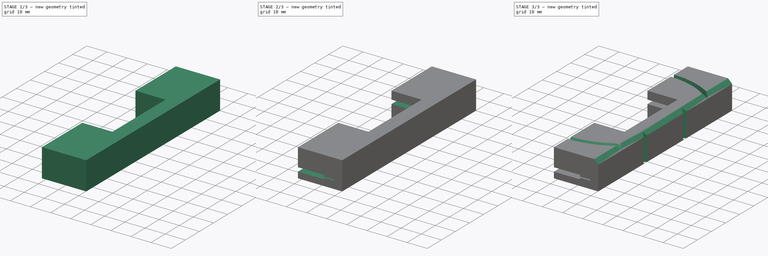
[diagram: build sequence overview — one tinted view per stage of 3, left to right]
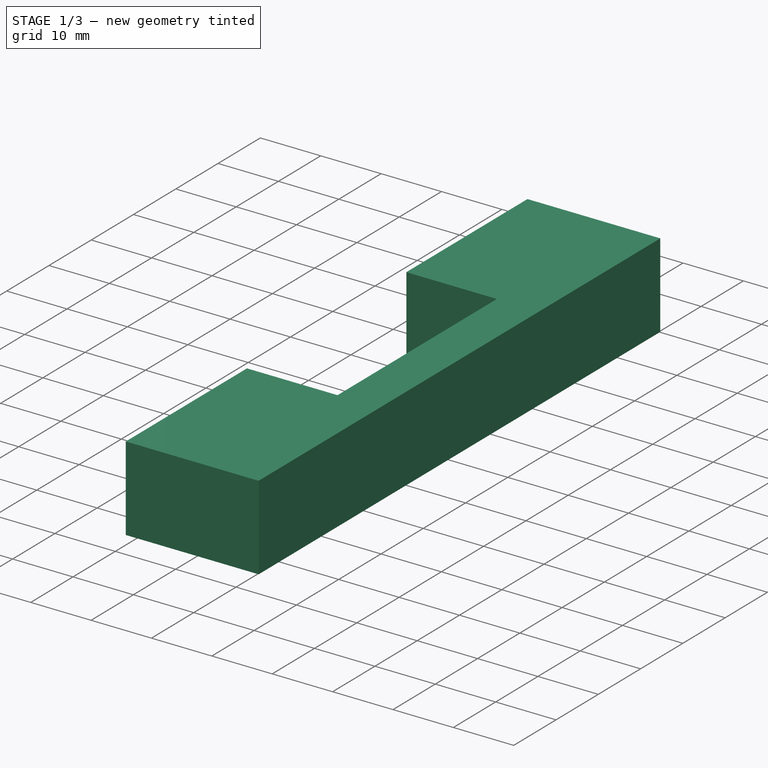
[diagram: stage 1 of 3 — iso view after this stage's code; geometry added in this stage tinted green]
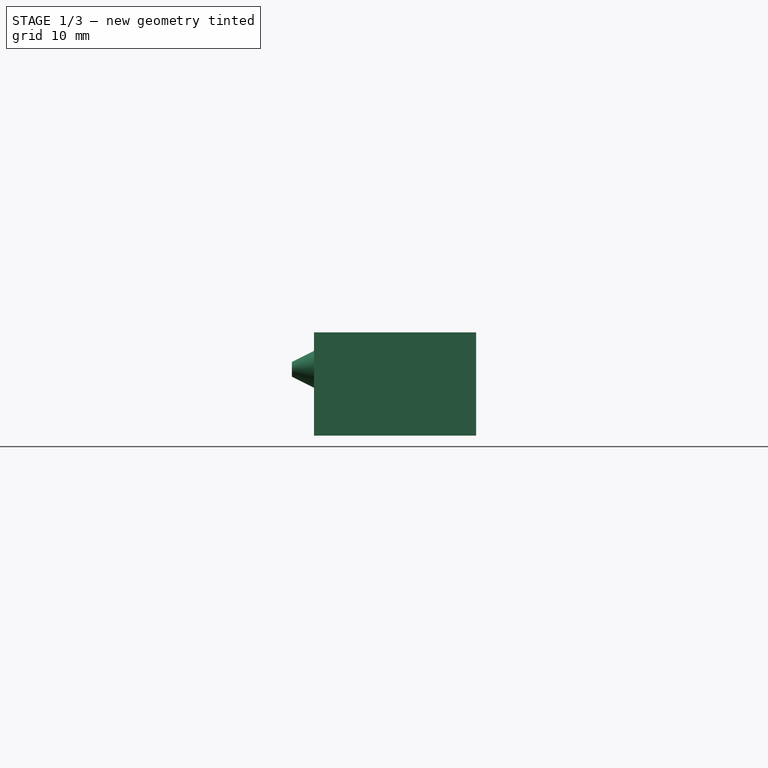
[diagram: stage 1 of 3 — front view after this stage's code; geometry added in this stage tinted green]
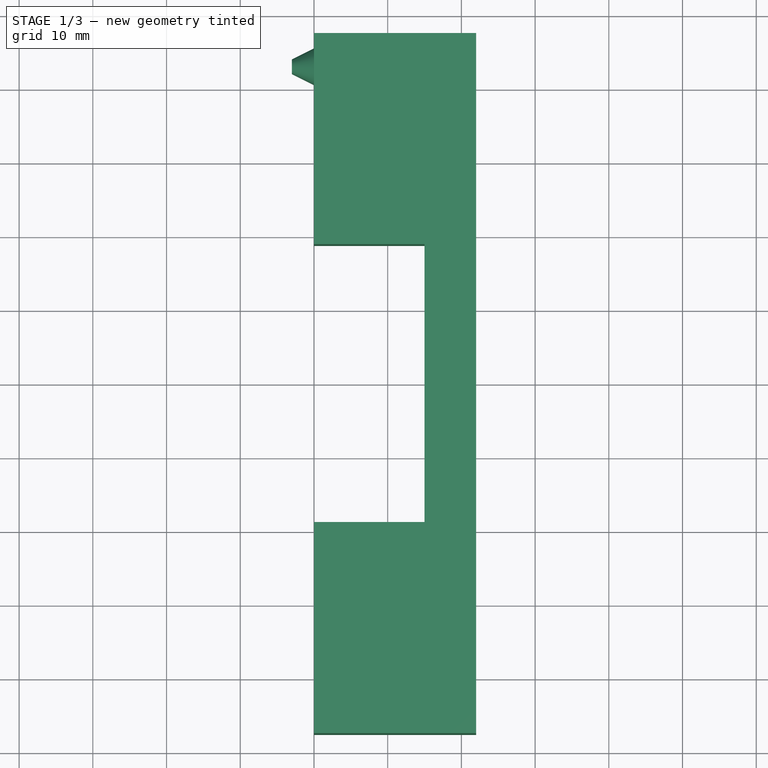
[diagram: stage 1 of 3 — top view after this stage's code; geometry added in this stage tinted green]
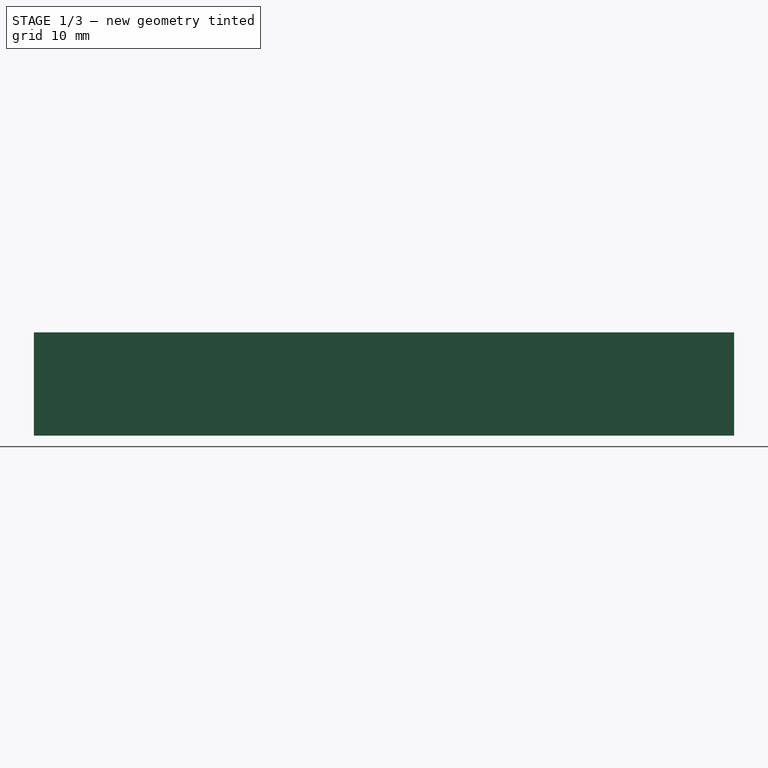
[diagram: stage 1 of 3 — right view after this stage's code; geometry added in this stage tinted green]
FCSTD DOCUMENT  (FreeCAD 1.0R39109 (Git))
Label: film_scanning
License: All rights reserved
LicenseURL: https://en.wikipedia.org/wiki/All_rights_reserved
objects: Sketcher::SketchObject×8, PartDesign::Pocket×4, PartDesign::Body×2, Part::Offset2D×2, PartDesign::Groove×2, PartDesign::ShapeBinder×2, Spreadsheet::Sheet×1, PartDesign::Pad×1, PartDesign::Revolution×1, PartDesign::Plane×1, App::Part×1
note: 47 computed .brp shape members not serialized (recipe doc carries the construction recipe); baked Part::Feature solids carry a one-line shape summary decoded from their .brp

FEATURE [Spreadsheet::Sheet] Spreadsheet  label="params"
  cells = A1='Film Plane Z; B1(film_plane_z)=0; A2='Film Clearance Perforation Width; B2(film_clearance_perforation_w)=0.5; A3='Film Clearance Inner Width; B3(film_clearance_inner_w)=2; A4='Film Clearance Perforation Length; B4(film_clearance_perforation_l)=36; A5='Film Clearance Inner Length; B5(film_clearance_inner_l)=26; A6='Film Window Width; B6(film_window_w)==film_clearance_perforation_l - 6; A7='Film Window Length; B7(film_window_l)=37.7; A8='Film S Curve Length; B8(film_s_curve_l)=20; A9='Alignment Pins Diameter; B9(alignment_pins_d)=5; A10='Alignment Pins Z; B10(alignment_pins_z)=0; A11='Alignment Pins Y; B11(alignment_pins_y)=43; A12='Alignment Pins Tolerance; B12(alignment_pins_t)=0.3; A13='Holder Width; B13(holder_w)==film_window_w + groove_d * 2 + 10; A14='Holder Working Distance Offset; B14(holder_wd_offset)=9; A15='Holder Thickness; B15(holder_t)=14; A16='Mount External Radius; B16(mount_external_r)=36.95; A17='Groove Depth; B17(groove_d)=2
FEATURE [Sketcher::SketchObject] Sketch001
  ArcFitTolerance = 0
  AttachmentSupport = -> [XY_Plane]
  FullyConstrained = true
  MakeInternals = false
  MapMode = 5
  expr: Constraints[12] = Spreadsheet.film_window_l
  expr: Constraints[13] = Spreadsheet.film_window_w / 2
  expr: Constraints[23] = <<params>>.holder_w / 2
  sketch-geometry (9):
    g0: LineSegment StartX=0 StartY=18.85 StartZ=0 EndX=15 EndY=18.85 EndZ=0
    g1: LineSegment StartX=15 StartY=18.85 StartZ=0 EndX=15 EndY=-18.85 EndZ=0
    g2: LineSegment StartX=15 StartY=-18.85 StartZ=0 EndX=0 EndY=-18.85 EndZ=0
    g3: LineSegment [constr] StartX=0 StartY=-18.85 StartZ=0 EndX=0 EndY=18.85 EndZ=0
    g4: LineSegment StartX=0 StartY=47.5 StartZ=0 EndX=22 EndY=47.5 EndZ=0
    g5: LineSegment StartX=22 StartY=47.5 StartZ=0 EndX=22 EndY=-47.5 EndZ=0
    g6: LineSegment StartX=22 StartY=-47.5 StartZ=0 EndX=0 EndY=-47.5 EndZ=0
    g7: LineSegment StartX=0 StartY=47.5 StartZ=0 EndX=0 EndY=18.85 EndZ=0
    g8: LineSegment StartX=0 StartY=-18.85 StartZ=0 EndX=0 EndY=-47.5 EndZ=0
  constraints (24):
    c: Coincident(g0,g1)
    c: Coincident(g1,g2)
    c: Coincident(g2,g3)
    c: Coincident(g3,g0)
    c: Horizontal(g0)
    c: Horizontal(g2)
    c: Vertical(g1)
    c: Vertical(g3)
    c: Coincident(g4,g5)
    c: Coincident(g5,g6)
    c: Horizontal(g4)
    c: Horizontal(g6)
    c: Distance(g1) = 37.7
    c: Distance(g2) = 15
    c: Symmetric(g0,g2,g-1)
    c: Distance(g5) = 95
    c: Coincident(g7,g4)
    c: Coincident(g7,g0)
    c: Vertical(g7)
    c: Coincident(g8,g2)
    c: Coincident(g8,g6)
    c: Vertical(g8)
    c: Symmetric(g4,g5,g-1)
    c: Distance(g-1,g5) = 22
FEATURE [PartDesign::Pad] Pad
  Direction = (0,0,1)
  Length = 5
  Length2 = 9
  Profile = -> Sketch001
  ReferenceAxis = -> Sketch001 [N_Axis]
  Suppressed = false
  Type = 4
  expr: Length = <<params>>.holder_t - <<params>>.holder_wd_offset
  expr: Length2 = <<params>>.holder_wd_offset
FEATURE [Sketcher::SketchObject] Sketch
  ArcFitTolerance = 0
  AttachmentSupport = -> [YZ_Plane001]
  FullyConstrained = true
  MakeInternals = false
  MapMode = 5
  Placement = pos=(0,0,0) rot=(0.57735,0.57735,0.57735;2.0944rad)
  expr: Constraints[34] = <<params>>.film_plane_z
  expr: Constraints[35] = <<params>>.film_window_l + 10
  expr: Constraints[46] = <<params>>.film_s_curve_l
  sketch-geometry (21):
    g0: LineSegment StartX=-23.85 StartY=0 StartZ=0 EndX=23.85 EndY=0 EndZ=0
    g1: LineSegment StartX=-73.85 StartY=-5 StartZ=0 EndX=-43.85 EndY=-5 EndZ=0
    g2: LineSegment StartX=43.85 StartY=-5 StartZ=0 EndX=73.85 EndY=-5 EndZ=0
    g3-g6: Circle [constr] x4 (B-spline internal-alignment scaffolding for g7; pole/knot coordinates omitted)
    g7: BSplineCurve PolesCount=4 KnotsCount=2 Degree=3 IsPeriodic=0
    g8: GeomPoint [constr] X=23.85 Y=0 Z=0
    g9: GeomPoint [constr] X=43.85 Y=-5 Z=0
    g10-g13: Circle [constr] x4 (B-spline internal-alignment scaffolding for g14; pole/knot coordinates omitted)
    g14: BSplineCurve PolesCount=4 KnotsCount=2 Degree=3 IsPeriodic=0
    g15: GeomPoint [constr] X=-23.85 Y=0 Z=0
    g16: GeomPoint [constr] X=-43.85 Y=-5 Z=0
    g17: LineSegment [constr] StartX=23.85 StartY=0 StartZ=0 EndX=33.85 EndY=0 EndZ=0
    g18: LineSegment [constr] StartX=33.85 StartY=-5 StartZ=0 EndX=43.85 EndY=-5 EndZ=0
    g19: LineSegment [constr] StartX=-43.85 StartY=-5 StartZ=0 EndX=-33.85 EndY=-5 EndZ=0
    g20: LineSegment [constr] StartX=-33.85 StartY=0 StartZ=0 EndX=-23.85 EndY=0 EndZ=0
  constraints (44):
    c: Horizontal(g1)
    c: Horizontal(g2)
    c: Symmetric(g1,g2,g-2)
    c: Symmetric(g0,g0,g-2)
    c: Weight(g3) = 1
    c: Coincident(g7,g0)
    c: Equal(g3,g4)
    c: Equal(g3,g5)
    c: Equal(g3,g6)
    c: Coincident(g7,g2)
    c: InternalAlignment(g3-g6 -> g7) x4
    c: InternalAlignment(g8,g7)
    c: InternalAlignment(g9,g7)
    c: PointOnObject(g5,g2)
    c: PointOnObject(g4,g0)
    c: Weight(g10) = 1
    c: Coincident(g14,g0)
    c: Equal(g10,g11)
    c: Equal(g10,g12)
    c: Equal(g10,g13)
    c: Coincident(g14,g1)
    c: InternalAlignment(g10-g13 -> g14) x4
    c: InternalAlignment(g15,g14)
    c: InternalAlignment(g16,g14)
    c: PointOnObject(g12,g1)
    c: PointOnObject(g11,g0)
    c: Vertical(g11,g12)
    c: Vertical(g4,g5)
    c: Distance(g-1,g0) = 0
    c: Distance(g0) = 47.7
    c: Coincident(g17,g0)
    c: Coincident(g17,g4)
    c: Coincident(g18,g5)
    c: Coincident(g18,g2)
    c: Equal(g17,g18)
    c: Coincident(g19,g1)
    c: Coincident(g19,g12)
    c: Coincident(g20,g11)
    c: Coincident(g20,g0)
    c: Equal(g20,g19)
    c: DistanceX(g0,g2) = 20
    c: DistanceY(g2,g0) = 5
    c: Distance(g2) = 30
    c: Equal(g1,g2)
FEATURE [PartDesign::Body] Body  label="Film Guide"
  AllowCompound = false
  Group = -> [Sketch]
  Origin = -> Origin001
FEATURE [Part::Offset2D] Offset2D  label="Film Clearance Inner"
  Fill = false
  Intersection = false
  Join = 0
  Mode = 1
  SelfIntersection = false
  Source = -> Sketch
  Value = 1
  expr: Value = Spreadsheet.film_clearance_inner_w / 2
FEATURE [Part::Offset2D] Offset2D001  label="Film Clearance Perforation"
  Fill = false
  Intersection = false
  Join = 0
  Mode = 1
  SelfIntersection = false
  Source = -> Sketch
  Value = 0.25
  expr: Value = Spreadsheet.film_clearance_perforation_w / 2
FEATURE [Sketcher::SketchObject] Sketch003
  ArcFitTolerance = 0
  AttachmentSupport = -> [XY_Plane]
  FullyConstrained = true
  MakeInternals = false
  MapMode = 5
  expr: .AttachmentOffset.Base.z = <<params>>.alignment_pins_z
  expr: Constraints[14] = <<params>>.alignment_pins_d
  expr: Constraints[16] = <<params>>.alignment_pins_y
  expr: Constraints[8] = <<params>>.alignment_pins_d / 2
  sketch-geometry (6):
    g0: LineSegment StartX=-3 StartY=44 StartZ=0 EndX=0 EndY=45.5 EndZ=0
    g1: LineSegment StartX=0 StartY=45.5 StartZ=0 EndX=0 EndY=43 EndZ=0
    g2: LineSegment StartX=0 StartY=43 StartZ=0 EndX=-3 EndY=43 EndZ=0
    g3: LineSegment StartX=-3 StartY=43 StartZ=0 EndX=-3 EndY=44 EndZ=0
    g4: LineSegment [constr] StartX=-3 StartY=43 StartZ=0 EndX=-5 EndY=43 EndZ=0
    g5: LineSegment [constr] StartX=-5 StartY=43 StartZ=0 EndX=-3 EndY=44 EndZ=0
  constraints (17):
    c: Coincident(g0,g1)
    c: Coincident(g1,g2)
    c: Coincident(g2,g3)
    c: Coincident(g3,g0)
    c: Horizontal(g2)
    c: Vertical(g1)
    c: Vertical(g3)
    c: PointOnObject(g-1,g1)
    c: Distance(g1) = 2.5
    c: Coincident(g4,g2)
    c: Horizontal(g4)
    c: Coincident(g5,g4)
    c: Coincident(g5,g0)
    c: Parallel(g5,g0)
    c: Distance(g4,g1) = 5
    c: Distance(g4) = 2
    c: DistanceY(g-1,g1) = 43
FEATURE [PartDesign::Revolution] Revolution  label="Alignment Pin"
  Angle = 360
  Angle2 = 60
  Axis = (-1,0,0)
  Base = (0,43,0)
  BaseFeature = -> Pad
  Profile = -> Sketch003
  ReferenceAxis = -> Sketch003 [Edge3]
  Suppressed = false
  Type = 0
FEATURE [Sketcher::SketchObject] Sketch004
  ArcFitTolerance = 0
  AttachmentSupport = -> [XY_Plane]
  FullyConstrained = true
  MakeInternals = false
  MapMode = 5
  expr: .AttachmentOffset.Base.z = <<params>>.alignment_pins_z
  expr: Constraints[4] = (<<params>>.alignment_pins_d + <<params>>.alignment_pins_t) / 2
  expr: Constraints[6] = <<params>>.alignment_pins_d + <<params>>.alignment_pins_t
  expr: Constraints[8] = -<<params>>.alignment_pins_y
  sketch-geometry (3):
    g0: LineSegment StartX=5.3 StartY=-43 StartZ=0 EndX=0 EndY=-40.35 EndZ=0
    g1: LineSegment StartX=0 StartY=-40.35 StartZ=0 EndX=0 EndY=-43 EndZ=0
    g2: LineSegment StartX=0 StartY=-43 StartZ=0 EndX=5.3 EndY=-43 EndZ=0
  constraints (9):
    c: Coincident(g0,g1)
    c: Coincident(g1,g2)
    c: Horizontal(g2)
    c: Vertical(g1)
    c: Distance(g1) = 2.65
    c: Coincident(g2,g0)
    c: Distance(g2) = 5.3
    c: PointOnObject(g1,g-2)
    c: DistanceY(g-1,g1) = -43
FEATURE [PartDesign::Groove] Groove  label="Alignment Hole"
  Angle = 360
  Angle2 = 60
  Axis = (1,0,0)
  Base = (0,-43,0)
  BaseFeature = -> Revolution
  Profile = -> Sketch004
  ReferenceAxis = -> Sketch004 [Edge3]
  Suppressed = false
  Type = 0
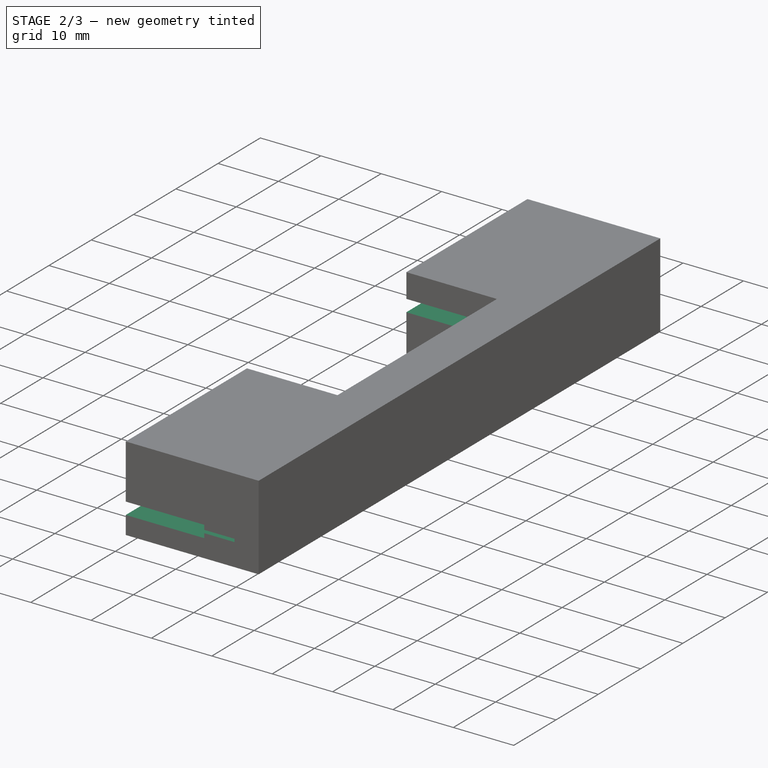
[diagram: stage 2 of 3 — iso view after this stage's code; geometry added in this stage tinted green]
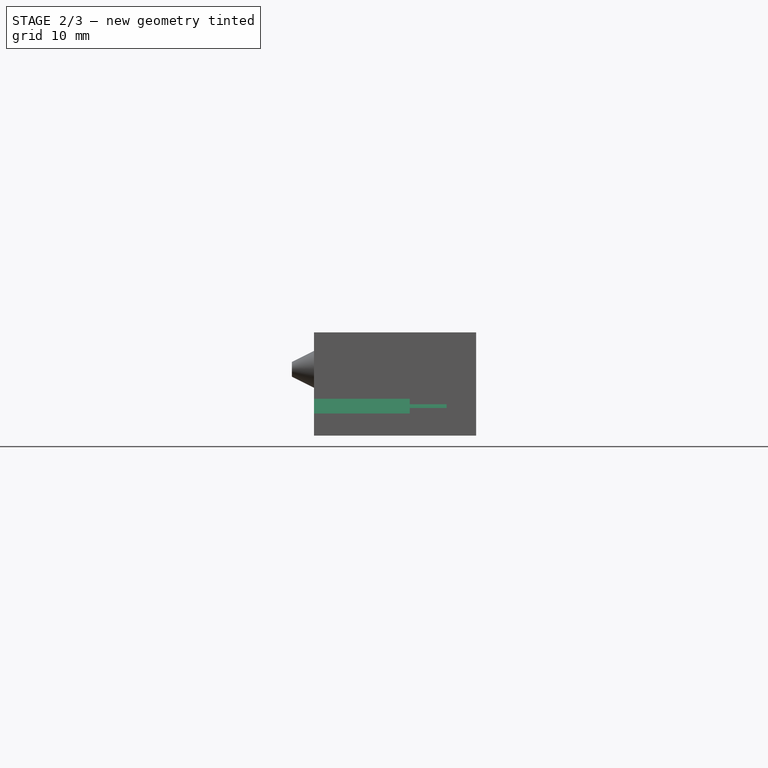
[diagram: stage 2 of 3 — front view after this stage's code; geometry added in this stage tinted green]
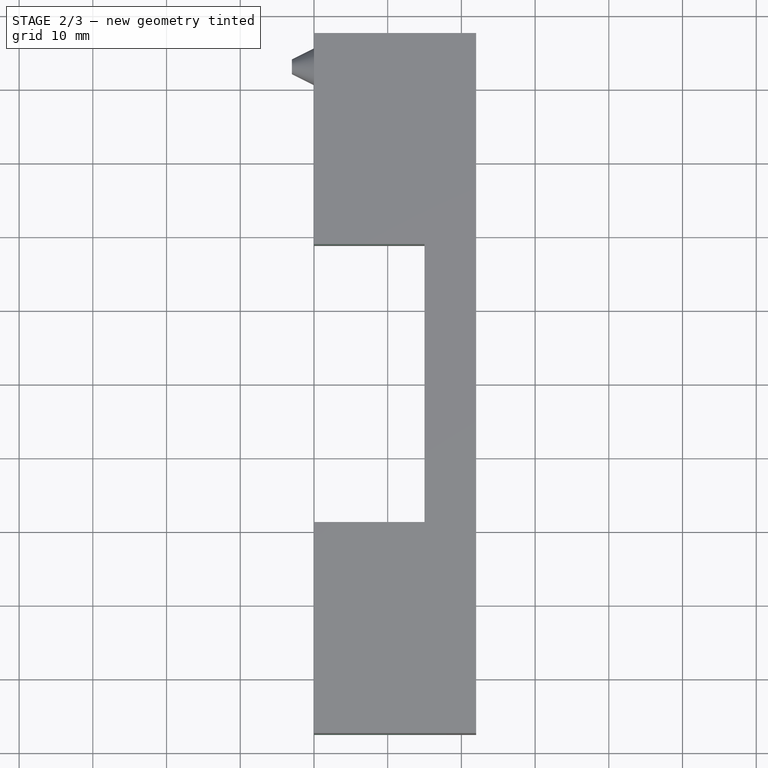
[diagram: stage 2 of 3 — top view after this stage's code; geometry added in this stage tinted green]
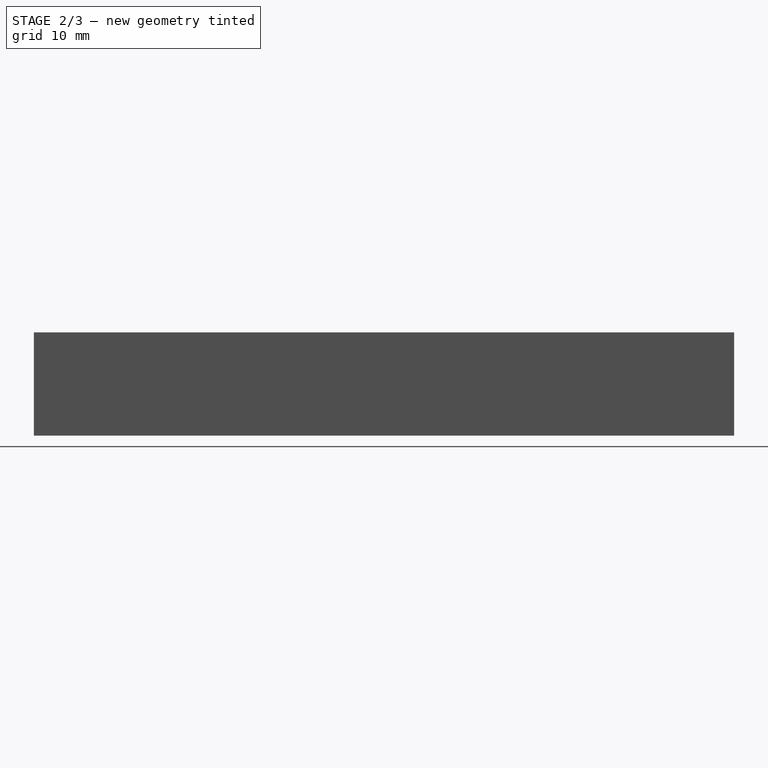
[diagram: stage 2 of 3 — right view after this stage's code; geometry added in this stage tinted green]
FEATURE [PartDesign::ShapeBinder] ShapeBinder  label="Film Clearance Perforation Binder Left"
  Support = -> [Offset2D001]
  TraceSupport = false
FEATURE [PartDesign::ShapeBinder] ShapeBinder001  label="Film Clearance Inner Binder Left"
  Support = -> [Offset2D]
  TraceSupport = false
FEATURE [PartDesign::Pocket] Pocket
  BaseFeature = -> Groove
  Direction = (-1,0,0)
  Length = 18
  Length2 = 5
  Profile = -> ShapeBinder
  Reversed = true
  Suppressed = false
  Type = 0
  expr: Length = <<params>>.film_clearance_perforation_l / 2
FEATURE [PartDesign::Pocket] Pocket001
  BaseFeature = -> Pocket
  Direction = (-1,0,0)
  Length = 13
  Length2 = 5
  Profile = -> ShapeBinder001
  Reversed = true
  Suppressed = false
  Type = 0
  expr: Length = <<params>>.film_clearance_inner_l / 2
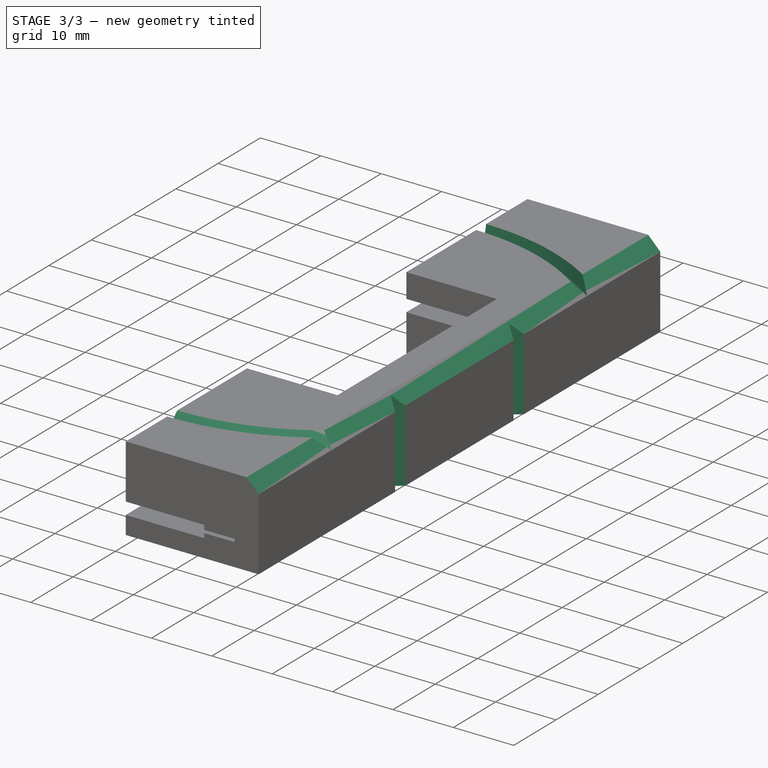
[diagram: stage 3 of 3 — iso view after this stage's code; geometry added in this stage tinted green]
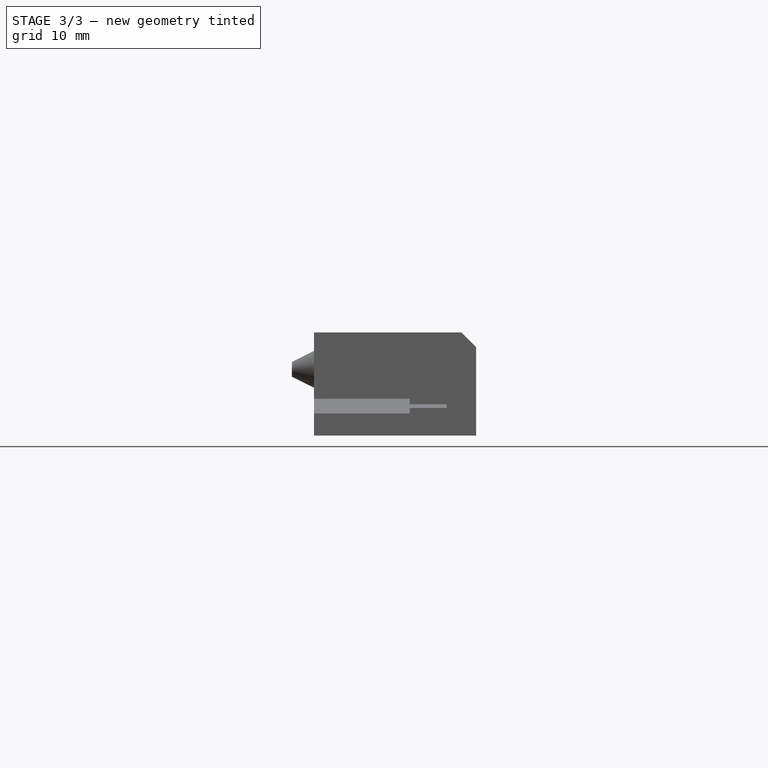
[diagram: stage 3 of 3 — front view after this stage's code; geometry added in this stage tinted green]
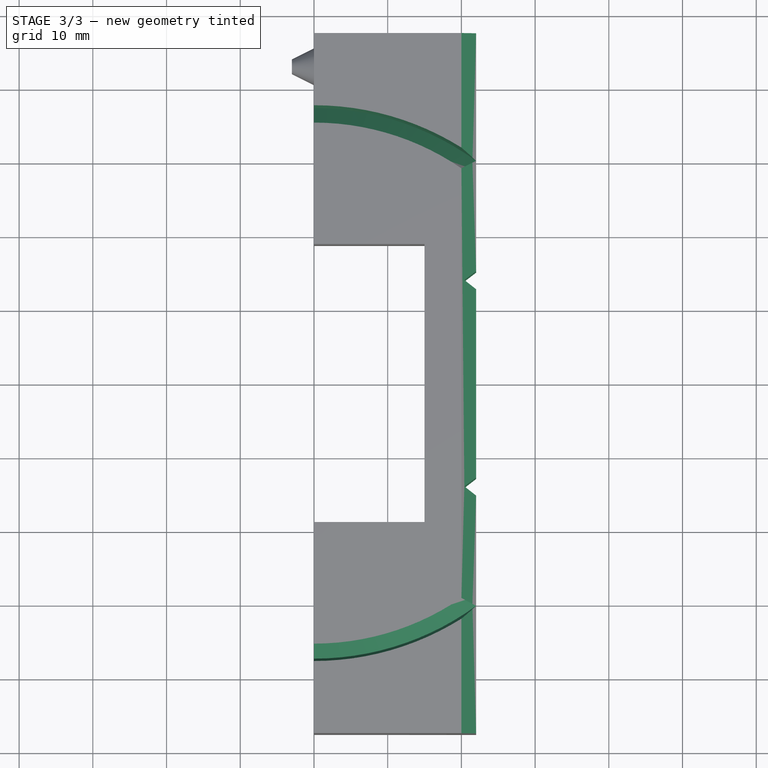
[diagram: stage 3 of 3 — top view after this stage's code; geometry added in this stage tinted green]
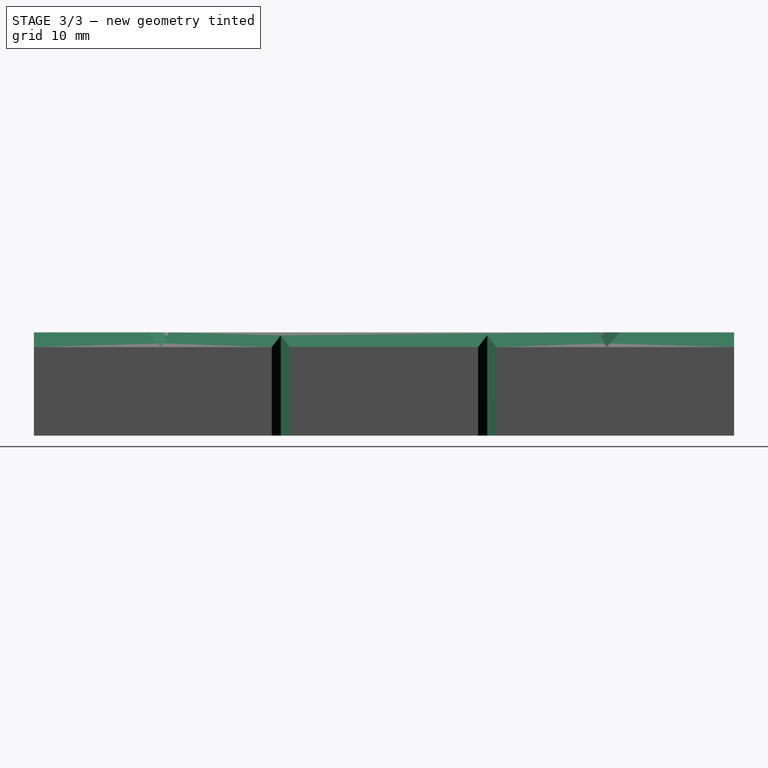
[diagram: stage 3 of 3 — right view after this stage's code; geometry added in this stage tinted green]
FEATURE [PartDesign::Plane] DatumPlane
  AttachmentOffset = pos=(0,0,22) rot=(0,0,1;0rad)
  AttachmentSupport = -> [YZ_Plane]
  Length = 108.784
  MapMode = 5
  Placement = pos=(22,0,0) rot=(0.57735,0.57735,0.57735;2.0944rad)
  ResizeMode = 0
  Width = 63.784
  expr: .AttachmentOffset.Base.z = <<params>>.holder_w / 2
FEATURE [Sketcher::SketchObject] Sketch007
  ArcFitTolerance = 0
  AttachmentSupport = -> [DatumPlane]
  FullyConstrained = true
  MakeInternals = false
  MapMode = 5
  Placement = pos=(22,0,0) rot=(0.57735,0.57735,0.57735;2.0944rad)
  expr: Constraints[25] = <<params>>.film_window_l
  sketch-geometry (10):
    g0: LineSegment StartX=-18.65 StartY=20 StartZ=0 EndX=-18.85 EndY=20 EndZ=0
    g1: LineSegment StartX=-18.85 StartY=20 StartZ=0 EndX=-18.85 EndY=-20 EndZ=0
    g2: LineSegment StartX=-18.85 StartY=-20 StartZ=0 EndX=-18.65 EndY=-20 EndZ=0
    g3: LineSegment StartX=-18.65 StartY=-20 StartZ=0 EndX=-18.65 EndY=20 EndZ=0
    g4: LineSegment StartX=18.85 StartY=-20 StartZ=0 EndX=18.65 EndY=-20 EndZ=0
    g5: LineSegment StartX=18.65 StartY=-20 StartZ=0 EndX=18.65 EndY=20 EndZ=0
    g6: LineSegment StartX=18.65 StartY=20 StartZ=0 EndX=18.85 EndY=20 EndZ=0
    g7: LineSegment StartX=18.85 StartY=20 StartZ=0 EndX=18.85 EndY=-20 EndZ=0
    g8: LineSegment [constr] StartX=-18.85 StartY=20 StartZ=0 EndX=18.85 EndY=20 EndZ=0
    g9: LineSegment [constr] StartX=-18.85 StartY=-20 StartZ=0 EndX=18.85 EndY=-20 EndZ=0
  constraints (27):
    c: Coincident(g0,g1)
    c: Coincident(g1,g2)
    c: Coincident(g2,g3)
    c: Coincident(g3,g0)
    c: Horizontal(g0)
    c: Horizontal(g2)
    c: Vertical(g1)
    c: Vertical(g3)
    c: Coincident(g4,g5)
    c: Coincident(g5,g6)
    c: Coincident(g6,g7)
    c: Coincident(g7,g4)
    c: Horizontal(g4)
    c: Horizontal(g6)
    c: Vertical(g5)
    c: Vertical(g7)
    c: Symmetric(g0,g4,g-1)
    c: Distance(g6) = 0.2
    c: Equal(g6,g0)
    c: Coincident(g8,g0)
    c: Coincident(g8,g6)
    c: Horizontal(g8)
    c: Coincident(g9,g1)
    c: Coincident(g9,g4)
    c: Horizontal(g9)
    c: Distance(g9) = 37.7
    c: Distance(g7) = 40
FEATURE [Sketcher::SketchObject] Sketch008
  ArcFitTolerance = 0
  AttachmentSupport = -> [XZ_Plane]
  FullyConstrained = true
  MakeInternals = false
  MapMode = 5
  Placement = pos=(0,0,0) rot=(1,0,0;1.5708rad)
  expr: Constraints[5] = <<params>>.holder_t - <<params>>.holder_wd_offset
  expr: Constraints[7] = <<params>>.holder_w / 2
  expr: Constraints[8] = <<params>>.groove_d
  sketch-geometry (3):
    g0: LineSegment StartX=20 StartY=5 StartZ=0 EndX=22 EndY=3 EndZ=0
    g1: LineSegment StartX=22 StartY=3 StartZ=0 EndX=22 EndY=5 EndZ=0
    g2: LineSegment StartX=20 StartY=5 StartZ=0 EndX=22 EndY=5 EndZ=0
  constraints (9):
    c: Coincident(g1,g0)
    c: Vertical(g1)
    c: Coincident(g2,g0)
    c: Coincident(g2,g1)
    c: Horizontal(g2)
    c: DistanceY(g-1,g1) = 5
    c: Angle(g0,g2) = 0.785398
    c: DistanceX(g-2,g1) = 22
    c: Distance(g2) = 2
FEATURE [PartDesign::Pocket] Pocket005
  BaseFeature = -> Pocket001
  Direction = (0,1,-2e-16)
  Length = 5
  Length2 = 5
  Midplane = true
  Profile = -> Sketch008
  ReferenceAxis = -> Sketch008 [N_Axis]
  Suppressed = false
  Type = 1
FEATURE [Sketcher::SketchObject] Sketch009
  ArcFitTolerance = 0
  AttachmentSupport = -> [YZ_Plane]
  FullyConstrained = true
  MakeInternals = false
  MapMode = 5
  Placement = pos=(0,0,0) rot=(0.57735,0.57735,0.57735;2.0944rad)
  expr: Constraints[5] = <<params>>.holder_t - <<params>>.holder_wd_offset
  expr: Constraints[6] = Spreadsheet.mount_external_r + 0.4
  expr: Constraints[8] = <<params>>.groove_d
  sketch-geometry (3):
    g0: LineSegment StartX=37.7027 StartY=5 StartZ=0 EndX=37.35 EndY=3 EndZ=0
    g1: LineSegment StartX=37.7027 StartY=5 StartZ=0 EndX=35.35 EndY=5 EndZ=0
    g2: LineSegment StartX=35.35 StartY=5 StartZ=0 EndX=37.35 EndY=3 EndZ=0
  constraints (9):
    c: Coincident(g1,g0)
    c: Coincident(g2,g1)
    c: Coincident(g2,g0)
    c: Horizontal(g1)
    c: Angle(g2,g1) = 0.785398
    c: DistanceY(g-1,g0) = 5
    c: DistanceX(g-2,g0) = 37.35
    c: Angle(g1,g0) = 1.39626
    c: Distance(g0,g1) = 2
FEATURE [PartDesign::Groove] Groove001
  Angle = 360
  Angle2 = 60
  Axis = (0,0,1)
  Base = (0,0,0)
  BaseFeature = -> Pocket005
  Profile = -> Sketch009
  ReferenceAxis = -> Sketch009 [V_Axis]
  Suppressed = false
  Type = 0
FEATURE [Sketcher::SketchObject] Sketch010
  ArcFitTolerance = 0
  AttachmentSupport = -> [XY_Plane]
  FullyConstrained = true
  MakeInternals = false
  MapMode = 5
  expr: Constraints[8] = <<params>>.holder_w / 2
  sketch-geometry (8):
    g0: LineSegment StartX=22 StartY=15.2277 StartZ=0 EndX=20.4 EndY=14 EndZ=0
    g1: LineSegment StartX=20.4 StartY=14 StartZ=0 EndX=22 EndY=12.7723 EndZ=0
    g2: LineSegment StartX=22 StartY=12.7723 StartZ=0 EndX=22 EndY=15.2277 EndZ=0
    g3: LineSegment [constr] StartX=20.4 StartY=14 StartZ=0 EndX=22 EndY=14 EndZ=0
    g4: LineSegment StartX=22 StartY=-12.7723 StartZ=0 EndX=20.4 EndY=-14 EndZ=0
    g5: LineSegment StartX=20.4 StartY=-14 StartZ=0 EndX=22 EndY=-15.2277 EndZ=0
    g6: LineSegment StartX=22 StartY=-12.7723 StartZ=0 EndX=22 EndY=-15.2277 EndZ=0
    g7: LineSegment [constr] StartX=20.4 StartY=-14 StartZ=0 EndX=22 EndY=-14 EndZ=0
  constraints (21):
    c: Coincident(g1,g0)
    c: Coincident(g2,g1)
    c: Coincident(g2,g0)
    c: Coincident(g3,g0)
    c: Horizontal(g3)
    c: Symmetric(g0,g1,g3)
    c: Angle(g1,g0) = 1.309
    c: Distance(g3) = 1.6
    c: DistanceX(g-2,g3) = 22
    c: DistanceY(g-1,g0) = 14
    c: Vertical(g2)
    c: Coincident(g5,g4)
    c: Coincident(g6,g4)
    c: Coincident(g6,g5)
    c: Vertical(g6)
    c: Coincident(g7,g4)
    c: Symmetric(g4,g5,g7)
    c: Horizontal(g7)
    c: Symmetric(g4,g0,g-1)
    c: Equal(g3,g7)
    c: Angle(g5,g4) = 1.309
FEATURE [PartDesign::Pocket] Pocket006
  BaseFeature = -> Groove001
  Direction = (0,0,-1)
  Length = 5
  Length2 = 5
  Midplane = true
  Profile = -> Sketch010
  ReferenceAxis = -> Sketch010 [N_Axis]
  Suppressed = false
  Type = 1
FEATURE [PartDesign::Body] Body001  label="Film Holder Left"
  AllowCompound = false
  Group = -> [Sketch001,Pad,Sketch003,Revolution,Sketch004,Groove,ShapeBinder,ShapeBinder001,Pocket,Pocket001,DatumPlane,Sketch007,Sketch008,Pocket005,Sketch009,Groove001,Sketch010,Pocket006]
  Origin = -> Origin
  Tip = -> Pocket006
FEATURE [App::Part] Part
  Group = -> [Body,Body001,Offset2D001,Offset2D]
  Origin = -> Origin002
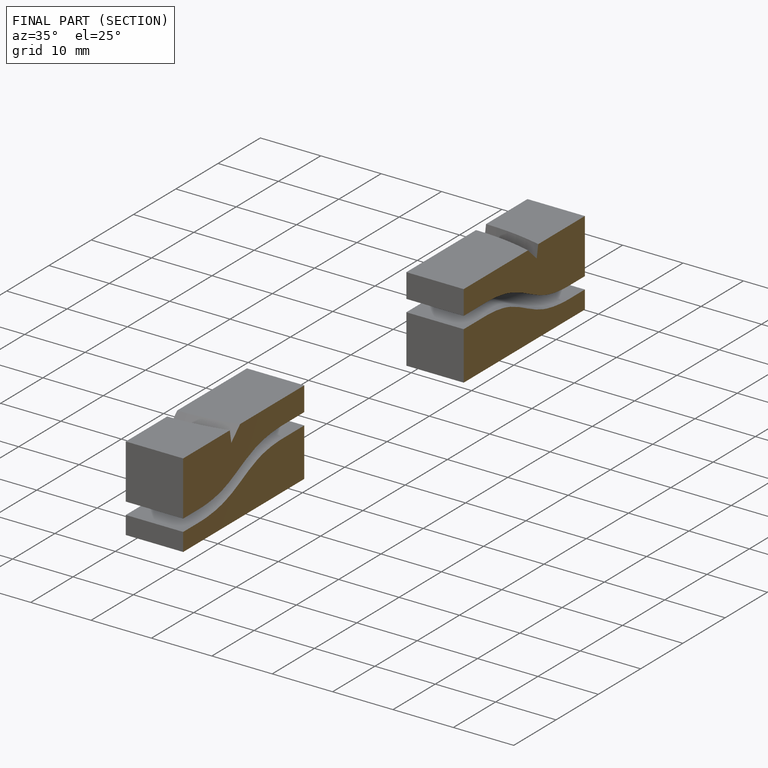
[diagram: finished part — half-section view (interior)]
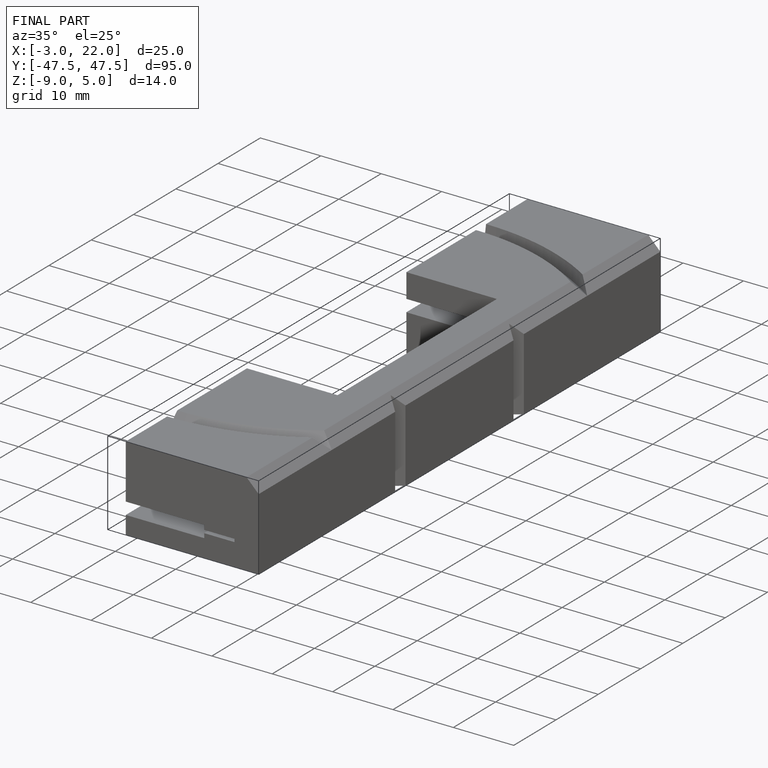
[diagram: finished part — iso view with bounding-box wireframe]
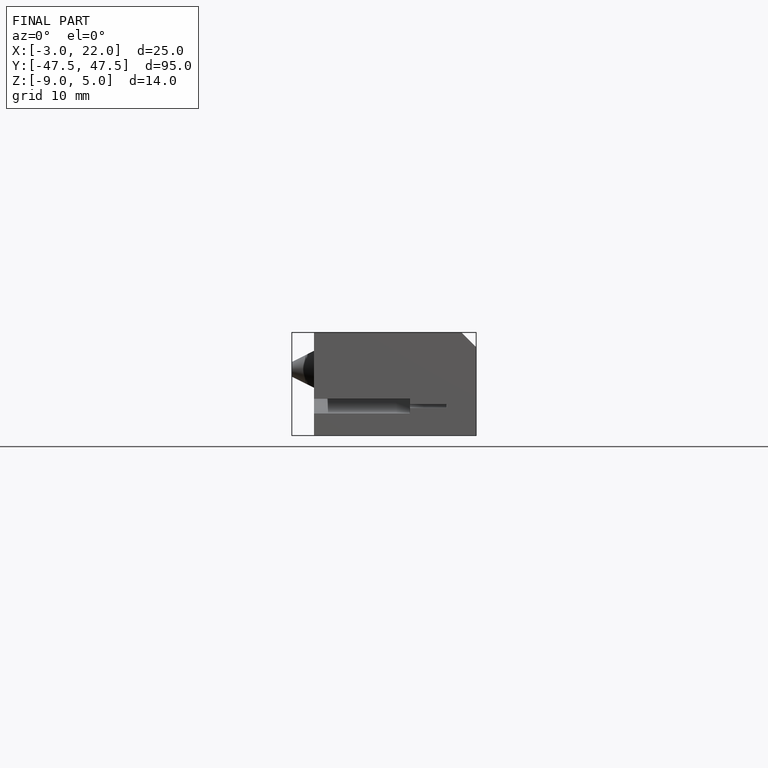
[diagram: finished part — front view with bounding-box wireframe]
